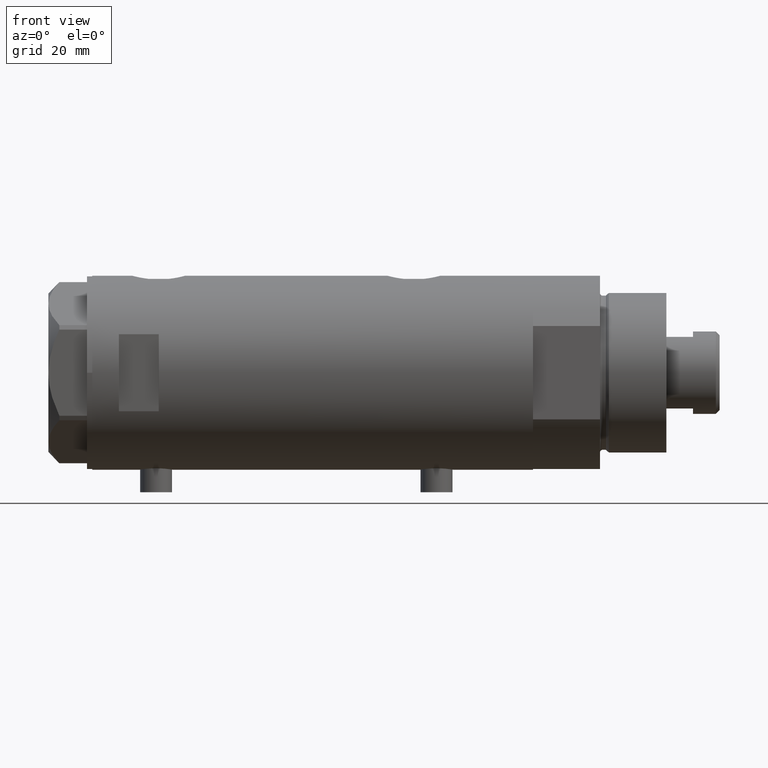
[diagram: clean part render]
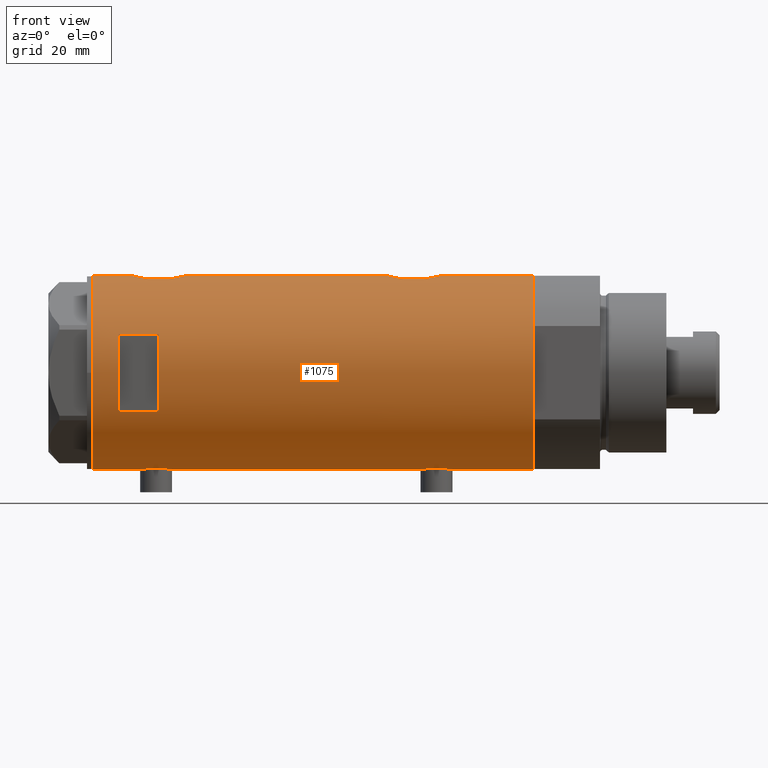
[diagram: same view with one face highlighted and labeled with its STEP entity id]
A machine part, front view. The second image highlights one B-rep face of the part: STEP entity #1075.
In plain terms, the highlighted cylindrical surface (partial cylindrical patch) has radius 36.5 mm, axis along (-1, -0, 0).
Its self-contained STEP definition (entity closure, byte-faithful):
#16 = EDGE_CURVE ( 'NONE', #4254, #3248, #575, .T. ) ;
#30 = DIRECTION ( 'NONE',  ( 1.000000000000000000, 0.000000000000000000, 0.000000000000000000 ) ) ;
#48 = VECTOR ( 'NONE', #3559, 1000.000000000000000 ) ;
#75 = CARTESIAN_POINT ( 'NONE',  ( -36.44621655743048905, -2.016281777336080161, 52.97017023300883665 ) ) ;
#79 = EDGE_CURVE ( 'NONE', #4462, #610, #4126, .T. ) ;
#139 = DIRECTION ( 'NONE',  ( 0.000000000000000000, 0.000000000000000000, 1.000000000000000000 ) ) ;
#155 = CARTESIAN_POINT ( 'NONE',  ( 36.34247810649306132, -3.420510937483960845, -28.69013481598272719 ) ) ;
#180 = ORIENTED_EDGE ( 'NONE', *, *, #3720, .F. ) ;
#183 = CARTESIAN_POINT ( 'NONE',  ( -36.50000000000000000, 2.196845629780489385E-16, 65.15000000000000568 ) ) ;
#197 = CIRCLE ( 'NONE', #342, 36.50000000000000000 ) ;
#217 = ORIENTED_EDGE ( 'NONE', *, *, #2765, .F. ) ;
#233 = CARTESIAN_POINT ( 'NONE',  ( 36.44931971524465553, -1.985988150549293341, -28.28633139468236379 ) ) ;
#256 = CARTESIAN_POINT ( 'NONE',  ( -36.16096637594732499, -4.968588355849264282, -50.41334492817760093 ) ) ;
#269 = CARTESIAN_POINT ( 'NONE',  ( 36.29527920868844859, -3.886508670267140975, -47.32716275830865982 ) ) ;
#278 = CARTESIAN_POINT ( 'NONE',  ( -36.46417279006303858, -1.628689148039105250, -40.56246061306183748 ) ) ;
#283 = VERTEX_POINT ( 'NONE', #1101 ) ;
#292 = VERTEX_POINT ( 'NONE', #3854 ) ;
#300 = CARTESIAN_POINT ( 'NONE',  ( -35.96095902952615830, -6.249754054240904466, -47.01658765420470587 ) ) ;
#311 = CARTESIAN_POINT ( 'NONE',  ( 36.50000000000000000, -0.5031001875915698252, 47.89999999999999858 ) ) ;
#318 = CARTESIAN_POINT ( 'NONE',  ( -36.36635911126386844, -3.125815113635437736, -52.01605600407904006 ) ) ;
#327 = CARTESIAN_POINT ( 'NONE',  ( -36.01675918113430441, -5.920026275461276910, 56.88560443482112561 ) ) ;
#342 = AXIS2_PLACEMENT_3D ( 'NONE', #1171, #3855, #3121 ) ;
#354 = CARTESIAN_POINT ( 'NONE',  ( -35.98821803976955636, -6.090959022952108448, 60.31573883149418691 ) ) ;
#363 = LINE ( 'NONE', #1392, #1343 ) ;
#365 = VERTEX_POINT ( 'NONE', #3977 ) ;
#368 = LINE ( 'NONE', #1224, #3803 ) ;
#375 = ORIENTED_EDGE ( 'NONE', *, *, #79, .F. ) ;
#384 = CARTESIAN_POINT ( 'NONE',  ( 35.52323553852026095, -8.411295122831241144, 63.39752392951088211 ) ) ;
#470 = CARTESIAN_POINT ( 'NONE',  ( 0.000000000000000000, 0.000000000000000000, -82.90000000000000568 ) ) ;
#480 = CARTESIAN_POINT ( 'NONE',  ( -36.39621039793029666, -2.776267550998798850, 64.51430753106778582 ) ) ;
#481 = AXIS2_PLACEMENT_3D ( 'NONE', #3296, #503, #1849 ) ;
#503 = DIRECTION ( 'NONE',  ( 0.000000000000000000, 0.000000000000000000, 1.000000000000000000 ) ) ;
#549 = EDGE_CURVE ( 'NONE', #2139, #283, #3629, .T. ) ;
#561 = VECTOR ( 'NONE', #1411, 1000.000000000000000 ) ;
#575 = B_SPLINE_CURVE_WITH_KNOTS ( 'NONE', 3,
 ( #1264, #927, #2194, #233, #1892, #155, #3631, #2624, #1910, #1535, #2898, #2605, #2555, #2262, #3652, #1940, #2287, #587 ),
 .UNSPECIFIED., .F., .F.,
 ( 4, 2, 2, 2, 2, 2, 2, 2, 4 ),
 ( 0.01190956515753144491, 0.01339852714138289880, 0.01488748912523435095, 0.01637645110908580309, 0.01712093210101153090, 0.01786541309293725524, 0.01935437507678869698, 0.02084333706064013872, 0.02382126102834301179 ),
 .UNSPECIFIED. ) ;
#578 = VECTOR ( 'NONE', #1406, 1000.000000000000000 ) ;
#587 = CARTESIAN_POINT ( 'NONE',  ( 35.29999999999999716, -9.282241108697837362, -34.37978495245235422 ) ) ;
#592 = CARTESIAN_POINT ( 'NONE',  ( -36.26692673949090562, -4.128477002029516285, -51.30999987432166876 ) ) ;
#610 = VERTEX_POINT ( 'NONE', #3010 ) ;
#611 = CARTESIAN_POINT ( 'NONE',  ( -36.44621655743048905, -2.016281777336084158, -52.52982976699116335 ) ) ;
#646 = CARTESIAN_POINT ( 'NONE',  ( 35.29999999999999716, -9.282241108697837362, 54.17978495245235138 ) ) ;
#660 = ORIENTED_EDGE ( 'NONE', *, *, #2741, .T. ) ;
#666 = CARTESIAN_POINT ( 'NONE',  ( 36.50000000000000000, 4.344604608721388599E-19, 67.90000000000000568 ) ) ;
#679 = CARTESIAN_POINT ( 'NONE',  ( 36.34247810649305421, -3.420510937483963065, 67.30986518401726926 ) ) ;
#685 = CARTESIAN_POINT ( 'NONE',  ( -36.50000000000000000, 4.469960493369248271E-15, 52.65000000000001279 ) ) ;
#729 = CARTESIAN_POINT ( 'NONE',  ( 35.93373217836898448, -6.415110096330619349, 65.58704266355093182 ) ) ;
#734 = CARTESIAN_POINT ( 'NONE',  ( -36.39558535855675103, -2.764807686267996001, 53.29105881454392346 ) ) ;
#756 = CARTESIAN_POINT ( 'NONE',  ( -36.49315367594273596, -0.8144497809045454506, 52.68960214445250045 ) ) ;
#782 = CARTESIAN_POINT ( 'NONE',  ( -36.47262891311152089, -1.427622242603853175, 64.98824629211699744 ) ) ;
#802 = CARTESIAN_POINT ( 'NONE',  ( 14.49137674618942739, -33.50000000000000000, -82.90000000000000568 ) ) ;
#810 = ORIENTED_EDGE ( 'NONE', *, *, #1540, .F. ) ;
#828 = CARTESIAN_POINT ( 'NONE',  ( -36.30107494031871340, -3.820993528321226851, 63.86306153536310148 ) ) ;
#887 = CARTESIAN_POINT ( 'NONE',  ( 36.50000000000000000, 0.000000000000000000, -82.90000000000000568 ) ) ;
#927 = CARTESIAN_POINT ( 'NONE',  ( 36.50000000000000000, -0.4962708696651104701, -28.10000000000000853 ) ) ;
#933 = CARTESIAN_POINT ( 'NONE',  ( -36.19599073318030946, -4.702920041824402375, -42.47846168323421523 ) ) ;
#955 = CARTESIAN_POINT ( 'NONE',  ( -36.36656776002987357, -3.137002187003164799, -41.17863590726366851 ) ) ;
#979 = CARTESIAN_POINT ( 'NONE',  ( 36.41918031349423757, -2.473644131148929226, 67.60188345463190274 ) ) ;
#984 = CARTESIAN_POINT ( 'NONE',  ( 35.69273631926343882, -7.635692914629145456, 51.43799804348507365 ) ) ;
#1019 = CARTESIAN_POINT ( 'NONE',  ( -36.50000000000000000, 4.469960493366092827E-15, -52.85000000000000853 ) ) ;
#1024 = CARTESIAN_POINT ( 'NONE',  ( -36.21356728133256553, -4.566014386638768130, -42.32737339235254126 ) ) ;
#1032 = CARTESIAN_POINT ( 'NONE',  ( -35.96095902952617251, -6.249754054240892920, 58.48341234579529413 ) ) ;
#1042 = CARTESIAN_POINT ( 'NONE',  ( 36.50000000000000000, -0.4962708696651115803, 67.90000000000000568 ) ) ;
#1048 = EDGE_CURVE ( 'NONE', #2680, #1781, #1899, .T. ) ;
#1065 = CARTESIAN_POINT ( 'NONE',  ( 36.00092304812866928, -6.029438422680412302, 65.89308155573651504 ) ) ;
#1075 = ADVANCED_FACE ( 'NONE', ( #1333, #2700 ), #2830, .T. ) ;
#1093 = CARTESIAN_POINT ( 'NONE',  ( 35.29999999999999716, -9.282241108697837362, -34.37978495245235422 ) ) ;
#1094 = CARTESIAN_POINT ( 'NONE',  ( -36.46614432713123932, -1.622933015999963979, 52.85033402613154863 ) ) ;
#1101 = CARTESIAN_POINT ( 'NONE',  ( 36.50000000000000000, 0.000000000000000000, 47.89999999999999858 ) ) ;
#1114 = CARTESIAN_POINT ( 'NONE',  ( -36.26692673949090562, -4.128477002029507403, 54.19000012567833835 ) ) ;
#1143 = CARTESIAN_POINT ( 'NONE',  ( -36.50000000000000000, -0.4136690418839307215, 65.15000000000001990 ) ) ;
#1161 = CARTESIAN_POINT ( 'NONE',  ( -36.50000000000000000, 4.469960493366092827E-15, -52.85000000000000853 ) ) ;
#1171 = CARTESIAN_POINT ( 'NONE',  ( 0.000000000000000000, 0.000000000000000000, 72.89999999999999147 ) ) ;
#1207 = CIRCLE ( 'NONE', #4457, 36.50000000000000000 ) ;
#1224 = CARTESIAN_POINT ( 'NONE',  ( 35.29999999999999716, -9.282241108697837362, -82.90000000000000568 ) ) ;
#1264 = CARTESIAN_POINT ( 'NONE',  ( 36.50000000000000000, 4.344611676915099379E-19, -28.10000000000000142 ) ) ;
#1265 = DIRECTION ( 'NONE',  ( -0.000000000000000000, -4.625929269271492422E-15, 1.000000000000000000 ) ) ;
#1291 = VERTEX_POINT ( 'NONE', #2626 ) ;
#1296 = ORIENTED_EDGE ( 'NONE', *, *, #3639, .F. ) ;
#1328 = CARTESIAN_POINT ( 'NONE',  ( -36.50000000000000000, 4.469960816887838430E-15, -82.90000000000000568 ) ) ;
#1330 = CARTESIAN_POINT ( 'NONE',  ( -36.35061318816139675, -3.303361544904985347, -51.90964041943019680 ) ) ;
#1333 = FACE_OUTER_BOUND ( 'NONE', #1469, .T. ) ;
#1343 = VECTOR ( 'NONE', #2001, 1000.000000000000000 ) ;
#1348 = CARTESIAN_POINT ( 'NONE',  ( 35.93363298843767950, -6.415574104180970849, -45.78651472888893181 ) ) ;
#1356 = CARTESIAN_POINT ( 'NONE',  ( -36.49315367594273596, -0.8144497809045464498, -52.81039785554752086 ) ) ;
#1369 = CARTESIAN_POINT ( 'NONE',  ( -35.99695583620880512, -6.039273428153901335, 57.27775555012245690 ) ) ;
#1375 = CARTESIAN_POINT ( 'NONE',  ( 36.50000000000000000, 0.000000000000000000, -48.10000000000000142 ) ) ;
#1392 = CARTESIAN_POINT ( 'NONE',  ( 36.50000000000000000, 0.000000000000000000, -82.90000000000000568 ) ) ;
#1393 = EDGE_CURVE ( 'NONE', #1291, #3125, #2695, .T. ) ;
#1399 = CARTESIAN_POINT ( 'NONE',  ( 36.21540437201188922, -4.554727782332259167, 66.80597629088626377 ) ) ;
#1406 = DIRECTION ( 'NONE',  ( 0.000000000000000000, 0.000000000000000000, 1.000000000000000000 ) ) ;
#1411 = DIRECTION ( 'NONE',  ( 0.000000000000000000, 0.000000000000000000, 1.000000000000000000 ) ) ;
#1429 = CARTESIAN_POINT ( 'NONE',  ( 35.29999999999999716, -9.282241108697837362, -41.82021504754764862 ) ) ;
#1435 = CARTESIAN_POINT ( 'NONE',  ( -36.35061318816141096, -3.303361544904979574, 53.59035958056982452 ) ) ;
#1450 = LINE ( 'NONE', #802, #48 ) ;
#1469 = EDGE_LOOP ( 'NONE', ( #217, #1583, #1562, #375, #2670, #4043, #1676, #4207, #3694, #1993, #660, #1296, #1904, #2232, #2987, #180 ) ) ;
#1474 = EDGE_CURVE ( 'NONE', #4254, #283, #363, .T. ) ;
#1475 = CARTESIAN_POINT ( 'NONE',  ( -36.36656776002988778, -3.137002187003155473, 64.32136409273633149 ) ) ;
#1488 = AXIS2_PLACEMENT_3D ( 'NONE', #470, #4229, #2155 ) ;
#1493 = ORIENTED_EDGE ( 'NONE', *, *, #1871, .F. ) ;
#1503 = CARTESIAN_POINT ( 'NONE',  ( -36.46417279006302437, -1.628689148039105250, 64.93753938693815542 ) ) ;
#1524 = CARTESIAN_POINT ( 'NONE',  ( -36.43335814606992784, -2.212659578761317469, 64.74876399169507124 ) ) ;
#1535 = CARTESIAN_POINT ( 'NONE',  ( 36.12724769814495573, -5.207618053557751203, -29.55935879511536157 ) ) ;
#1540 = EDGE_CURVE ( 'NONE', #3873, #2912, #197, .T. ) ;
#1562 = ORIENTED_EDGE ( 'NONE', *, *, #1673, .T. ) ;
#1583 = ORIENTED_EDGE ( 'NONE', *, *, #3814, .T. ) ;
#1590 = LINE ( 'NONE', #3234, #3365 ) ;
#1596 = CARTESIAN_POINT ( 'NONE',  ( 36.50000000000000000, 4.344611676915099379E-19, -28.10000000000000142 ) ) ;
#1619 = CARTESIAN_POINT ( 'NONE',  ( 35.79656810172927806, -7.133411935499478496, 50.88745121442323693 ) ) ;
#1629 = CARTESIAN_POINT ( 'NONE',  ( -36.50000000000000000, 7.463603853851042361E-16, -40.34999999999999432 ) ) ;
#1654 = CARTESIAN_POINT ( 'NONE',  ( -35.96816095843705341, -6.208699946936208747, -47.42496377127785223 ) ) ;
#1670 = CARTESIAN_POINT ( 'NONE',  ( 36.18850502651836365, -4.779575967213807175, -46.89779152890154279 ) ) ;
#1673 = EDGE_CURVE ( 'NONE', #3689, #610, #2620, .T. ) ;
#1674 = CARTESIAN_POINT ( 'NONE',  ( -35.98855750525640929, -6.088954600884540547, -48.02430226150165993 ) ) ;
#1676 = ORIENTED_EDGE ( 'NONE', *, *, #1474, .T. ) ;
#1683 = CARTESIAN_POINT ( 'NONE',  ( 35.83108131285855791, -6.958268797611352419, 50.71369216627174126 ) ) ;
#1733 = CARTESIAN_POINT ( 'NONE',  ( 35.29999999999999716, -9.282241108697837362, -82.90000000000000568 ) ) ;
#1739 = CARTESIAN_POINT ( 'NONE',  ( 14.49137674618942739, -33.50000000000000000, 72.89999999999999147 ) ) ;
#1747 = LINE ( 'NONE', #2817, #3164 ) ;
#1759 = CARTESIAN_POINT ( 'NONE',  ( 35.29999999999999716, -9.282241108697837362, 61.62021504754764578 ) ) ;
#1766 = EDGE_LOOP ( 'NONE', ( #3645, #1493, #810, #2745 ) ) ;
#1781 = VERTEX_POINT ( 'NONE', #3661 ) ;
#1795 = CARTESIAN_POINT ( 'NONE',  ( -36.50000000000000000, 4.469960493369248271E-15, 52.65000000000001279 ) ) ;
#1797 = VERTEX_POINT ( 'NONE', #183 ) ;
#1813 = CARTESIAN_POINT ( 'NONE',  ( -36.01639592019627401, -5.922235714778413040, 60.90796802426914525 ) ) ;
#1849 = DIRECTION ( 'NONE',  ( 1.000000000000000000, 0.000000000000000000, 0.000000000000000000 ) ) ;
#1858 = CARTESIAN_POINT ( 'NONE',  ( -36.14410773716529945, -5.085921866747741049, 62.53835878420471772 ) ) ;
#1871 = EDGE_CURVE ( 'NONE', #2912, #2497, #1590, .T. ) ;
#1892 = CARTESIAN_POINT ( 'NONE',  ( 36.41918031349423757, -2.473644131148924341, -28.39811654536808661 ) ) ;
#1899 = B_SPLINE_CURVE_WITH_KNOTS ( 'NONE', 3,
 ( #2373, #1042, #2028, #3780, #979, #679, #2392, #1399, #2761, #3795, #4159, #1065, #729, #3040, #2091, #384, #4433, #1759 ),
 .UNSPECIFIED., .F., .F.,
 ( 4, 2, 2, 2, 2, 2, 2, 2, 4 ),
 ( 0.01190956515753144838, 0.01339852714138287625, 0.01488748912523430584, 0.01637645110908573370, 0.01712093210101144763, 0.01786541309293716503, 0.01935437507678861718, 0.02084333706064007280, 0.02382126102834301526 ),
 .UNSPECIFIED. ) ;
#1902 = CARTESIAN_POINT ( 'NONE',  ( -36.02782481185207075, -5.852531070448503847, 61.10277008952189703 ) ) ;
#1904 = ORIENTED_EDGE ( 'NONE', *, *, #3668, .F. ) ;
#1910 = CARTESIAN_POINT ( 'NONE',  ( 36.18674680775576746, -4.776679548204623593, -29.31107683068752223 ) ) ;
#1940 = CARTESIAN_POINT ( 'NONE',  ( 35.52323553852026095, -8.411295122831244697, -32.60247607048910368 ) ) ;
#1967 = CARTESIAN_POINT ( 'NONE',  ( -36.49297138689432529, -0.8222528563518524125, -40.39066887946565743 ) ) ;
#1993 = ORIENTED_EDGE ( 'NONE', *, *, #1048, .F. ) ;
#1999 = CARTESIAN_POINT ( 'NONE',  ( 35.69273631926343882, -7.635692914629145456, -44.56200195651491214 ) ) ;
#2001 = DIRECTION ( 'NONE',  ( 0.000000000000000000, 0.000000000000000000, 1.000000000000000000 ) ) ;
#2006 = CARTESIAN_POINT ( 'NONE',  ( -36.19666146462958523, -4.704890678739107379, -50.73429859510781625 ) ) ;
#2011 = EDGE_CURVE ( 'NONE', #2139, #1781, #368, .T. ) ;
#2015 = CARTESIAN_POINT ( 'NONE',  ( 36.41856252531823657, -2.482507212621167358, 48.20043487153495931 ) ) ;
#2019 = CARTESIAN_POINT ( 'NONE',  ( 36.48960339336945680, -1.002724032967599488, -48.06224865973496208 ) ) ;
#2024 = CARTESIAN_POINT ( 'NONE',  ( -36.40915499150420231, -2.580495338846554354, -52.29605013355477183 ) ) ;
#2028 = CARTESIAN_POINT ( 'NONE',  ( 36.48988302519020266, -0.9927202255321159186, 67.86326989411300303 ) ) ;
#2037 = CARTESIAN_POINT ( 'NONE',  ( 36.48960339336945680, -1.002724032967599488, 47.93775134026500950 ) ) ;
#2053 = CARTESIAN_POINT ( 'NONE',  ( -35.96087392089862789, -6.250243747806507599, 59.30917490776180045 ) ) ;
#2062 = CARTESIAN_POINT ( 'NONE',  ( 36.44881677724179525, -1.995085670027224811, -47.91180345369464533 ) ) ;
#2068 = CARTESIAN_POINT ( 'NONE',  ( 0.000000000000000000, 0.000000000000000000, -82.90000000000000568 ) ) ;
#2091 = CARTESIAN_POINT ( 'NONE',  ( 35.72583162417571145, -7.484316398521971614, 64.55042643719502848 ) ) ;
#2096 = CARTESIAN_POINT ( 'NONE',  ( -36.36635911126388976, -3.125815113635431075, 53.48394399592097415 ) ) ;
#2125 = AXIS2_PLACEMENT_3D ( 'NONE', #3562, #1265, #4234 ) ;
#2139 = VERTEX_POINT ( 'NONE', #3908 ) ;
#2155 = DIRECTION ( 'NONE',  ( 1.000000000000000000, 0.000000000000000000, 0.000000000000000000 ) ) ;
#2194 = CARTESIAN_POINT ( 'NONE',  ( 36.48988302519020976, -0.9927202255321161406, -28.13673010588698631 ) ) ;
#2232 = ORIENTED_EDGE ( 'NONE', *, *, #2795, .F. ) ;
#2255 = CARTESIAN_POINT ( 'NONE',  ( -14.49137674618942739, -33.50000000000000000, 57.89999999999999147 ) ) ;
#2262 = CARTESIAN_POINT ( 'NONE',  ( 35.79638309643554095, -7.141827709208429020, -31.08298073030451292 ) ) ;
#2287 = CARTESIAN_POINT ( 'NONE',  ( 35.39807338191550201, -8.909271871950332766, -33.44919617267214562 ) ) ;
#2310 = CARTESIAN_POINT ( 'NONE',  ( -36.09582946723049446, -5.421573071064202054, -49.73608278370488023 ) ) ;
#2319 = EDGE_CURVE ( 'NONE', #4462, #3248, #3853, .T. ) ;
#2320 = CARTESIAN_POINT ( 'NONE',  ( 36.12792682573228120, -5.214735277442337669, 49.35306882011299479 ) ) ;
#2330 = CARTESIAN_POINT ( 'NONE',  ( -35.99695583620881223, -6.039273428153914658, -48.22224444987753600 ) ) ;
#2340 = CARTESIAN_POINT ( 'NONE',  ( 35.72742963626382107, -7.471989379615407323, 51.24937739587225138 ) ) ;
#2348 = CARTESIAN_POINT ( 'NONE',  ( 36.41856252531823657, -2.482507212621167358, -47.79956512846506200 ) ) ;
#2354 = CARTESIAN_POINT ( 'NONE',  ( -35.96794010939611042, -6.209972807992086175, -45.78444451008647320 ) ) ;
#2361 = VERTEX_POINT ( 'NONE', #4152 ) ;
#2371 = CARTESIAN_POINT ( 'NONE',  ( -36.16125812922425098, -4.962923794285021728, -42.79553914089240152 ) ) ;
#2373 = CARTESIAN_POINT ( 'NONE',  ( 36.50000000000000000, 4.344604608721388599E-19, 67.90000000000000568 ) ) ;
#2380 = CARTESIAN_POINT ( 'NONE',  ( 36.50000000000000000, 0.000000000000000000, -82.90000000000000568 ) ) ;
#2384 = CARTESIAN_POINT ( 'NONE',  ( 36.50000000000000000, -0.5031001875915698252, -48.09999999999999432 ) ) ;
#2392 = CARTESIAN_POINT ( 'NONE',  ( 36.29582892817135331, -3.881628320031160762, 67.12934434534989236 ) ) ;
#2450 = CARTESIAN_POINT ( 'NONE',  ( -36.16096637594733210, -4.968588355849251847, 55.08665507182242749 ) ) ;
#2497 = VERTEX_POINT ( 'NONE', #2255 ) ;
#2524 = CARTESIAN_POINT ( 'NONE',  ( -14.49137674618942739, -33.50000000000000000, 72.89999999999999147 ) ) ;
#2541 = VERTEX_POINT ( 'NONE', #3264 ) ;
#2555 = CARTESIAN_POINT ( 'NONE',  ( 35.93373217836898448, -6.415110096330614020, -30.41295733644907173 ) ) ;
#2557 = VECTOR ( 'NONE', #2579, 1000.000000000000000 ) ;
#2579 = DIRECTION ( 'NONE',  ( 0.000000000000000000, 0.000000000000000000, 1.000000000000000000 ) ) ;
#2605 = CARTESIAN_POINT ( 'NONE',  ( 36.00092304812866928, -6.029438422680413190, -30.10691844426349562 ) ) ;
#2620 = LINE ( 'NONE', #3245, #2557 ) ;
#2624 = CARTESIAN_POINT ( 'NONE',  ( 36.21540437201188922, -4.554727782332255615, -29.19402370911373978 ) ) ;
#2626 = CARTESIAN_POINT ( 'NONE',  ( -36.50000000000000000, 7.463603853851042361E-16, -40.34999999999999432 ) ) ;
#2657 = CARTESIAN_POINT ( 'NONE',  ( -36.01675918113430441, -5.920026275461289345, -48.61439556517890281 ) ) ;
#2669 = CARTESIAN_POINT ( 'NONE',  ( 35.93363298843767950, -6.415574104180970849, 50.21348527111108240 ) ) ;
#2670 = ORIENTED_EDGE ( 'NONE', *, *, #2319, .T. ) ;
#2674 = CARTESIAN_POINT ( 'NONE',  ( 35.39794035667549821, -8.909777761736840773, -42.74954159089456596 ) ) ;
#2680 = VERTEX_POINT ( 'NONE', #666 ) ;
#2695 = LINE ( 'NONE', #1328, #4450 ) ;
#2698 = CARTESIAN_POINT ( 'NONE',  ( -36.47262891311152799, -1.427622242603851843, -40.51175370788298835 ) ) ;
#2700 = FACE_BOUND ( 'NONE', #1766, .T. ) ;
#2716 = CARTESIAN_POINT ( 'NONE',  ( 36.34184199234172041, -3.427106516421254412, -47.50740913680033373 ) ) ;
#2722 = CARTESIAN_POINT ( 'NONE',  ( -36.02823773219771653, -5.849994928883562650, -48.80955101485645287 ) ) ;
#2733 = CARTESIAN_POINT ( 'NONE',  ( -35.98855750525641639, -6.088954600884528112, 57.47569773849836139 ) ) ;
#2741 = EDGE_CURVE ( 'NONE', #2680, #292, #4216, .T. ) ;
#2745 = ORIENTED_EDGE ( 'NONE', *, *, #4473, .F. ) ;
#2761 = CARTESIAN_POINT ( 'NONE',  ( 36.18674680775578167, -4.776679548204628922, 66.68892316931247422 ) ) ;
#2765 = EDGE_CURVE ( 'NONE', #2361, #3459, #1747, .T. ) ;
#2795 = EDGE_CURVE ( 'NONE', #3125, #1797, #3087, .T. ) ;
#2797 = CARTESIAN_POINT ( 'NONE',  ( -36.30176144752230982, -3.814344296723633843, 53.93198298049745176 ) ) ;
#2817 = CARTESIAN_POINT ( 'NONE',  ( -36.50000000000000000, 4.469960816887838430E-15, -82.90000000000000568 ) ) ;
#2830 = CYLINDRICAL_SURFACE ( 'NONE', #1488, 36.50000000000000000 ) ;
#2876 = DIRECTION ( 'NONE',  ( 0.000000000000000000, 0.000000000000000000, 1.000000000000000000 ) ) ;
#2888 = CARTESIAN_POINT ( 'NONE',  ( -36.49297138689432529, -0.8222528563518540778, 65.10933112053433547 ) ) ;
#2898 = CARTESIAN_POINT ( 'NONE',  ( 36.09633718678917091, -5.417295330713080226, -29.69085132654786463 ) ) ;
#2910 = CARTESIAN_POINT ( 'NONE',  ( -36.06543684817879836, -5.617774235967360141, 61.66954447971700404 ) ) ;
#2912 = VERTEX_POINT ( 'NONE', #2524 ) ;
#2958 = DIRECTION ( 'NONE',  ( -0.000000000000000000, -0.000000000000000000, -1.000000000000000000 ) ) ;
#2974 = CARTESIAN_POINT ( 'NONE',  ( -35.99659093586380720, -6.041447834568803188, -44.98577587985177217 ) ) ;
#2987 = ORIENTED_EDGE ( 'NONE', *, *, #1393, .F. ) ;
#2995 = CARTESIAN_POINT ( 'NONE',  ( -36.44454782745417276, -2.020757099930490241, -40.68214135579004420 ) ) ;
#3010 = CARTESIAN_POINT ( 'NONE',  ( 36.50000000000000000, 0.000000000000000000, -48.10000000000000142 ) ) ;
#3018 = CARTESIAN_POINT ( 'NONE',  ( -36.26616882068469749, -4.135065845178866439, -41.89584944059903648 ) ) ;
#3037 = CARTESIAN_POINT ( 'NONE',  ( -36.02782481185207075, -5.852531070448518058, -44.39722991047811718 ) ) ;
#3040 = CARTESIAN_POINT ( 'NONE',  ( 35.79638309643554805, -7.141827709208436126, 64.91701926969550129 ) ) ;
#3052 = CARTESIAN_POINT ( 'NONE',  ( 36.12792682573228120, -5.214735277442337669, -46.64693117988700521 ) ) ;
#3087 = B_SPLINE_CURVE_WITH_KNOTS ( 'NONE', 3,
 ( #1795, #4172, #756, #1094, #75, #3830, #734, #2096, #1435, #2797, #1114, #4194, #2450, #3767, #3848, #3414, #327, #1369, #2733, #4128, #1032, #2053, #3436, #354, #3097, #1813, #1902, #2910, #3565, #1858, #4304, #3239, #3187, #3619, #828, #1475, #480, #1524, #3279, #1503, #782, #2888, #1143, #3210 ),
 .UNSPECIFIED., .F., .F.,
 ( 4, 2, 2, 2, 2, 2, 2, 2, 2, 2, 2, 2, 2, 2, 2, 2, 2, 2, 2, 2, 2, 4 ),
 ( 0.01957644481942640707, 0.02079966591703042919, 0.02202288701463445131, 0.02263449756343646410, 0.02324610811223847689, 0.02446932920984250248, 0.02569255030744652807, 0.02691577140505055366, 0.02752738195385255604, 0.02813899250265455843, 0.02936221360025858054, 0.03058543469786260266, 0.03119704524666461545, 0.03180865579546662825, 0.03303187689307066771, 0.03364348744187267704, 0.03425509799067469330, 0.03547831908827872582, 0.03670154018588275141, 0.03731315073468476073, 0.03792476128348677700, 0.03914798238109080952 ),
 .UNSPECIFIED. ) ;
#3097 = CARTESIAN_POINT ( 'NONE',  ( -35.99659093586380010, -6.041447834568789865, 60.51422412014822783 ) ) ;
#3121 = DIRECTION ( 'NONE',  ( 1.000000000000000000, 0.000000000000000000, 0.000000000000000000 ) ) ;
#3125 = VERTEX_POINT ( 'NONE', #685 ) ;
#3164 = VECTOR ( 'NONE', #3476, 1000.000000000000000 ) ;
#3187 = CARTESIAN_POINT ( 'NONE',  ( -36.21356728133256553, -4.566014386638760136, 63.17262660764745874 ) ) ;
#3210 = CARTESIAN_POINT ( 'NONE',  ( -36.50000000000000000, 2.196845629780489385E-16, 65.15000000000000568 ) ) ;
#3226 = VECTOR ( 'NONE', #139, 1000.000000000000000 ) ;
#3233 = CARTESIAN_POINT ( 'NONE',  ( -36.50000000000000000, 4.469960816887838430E-15, -82.90000000000000568 ) ) ;
#3234 = CARTESIAN_POINT ( 'NONE',  ( -14.49137674618942739, -33.50000000000000000, -82.90000000000000568 ) ) ;
#3239 = CARTESIAN_POINT ( 'NONE',  ( -36.19599073318029525, -4.702920041824397934, 63.02153831676577056 ) ) ;
#3245 = CARTESIAN_POINT ( 'NONE',  ( 36.50000000000000000, 0.000000000000000000, -82.90000000000000568 ) ) ;
#3248 = VERTEX_POINT ( 'NONE', #1093 ) ;
#3264 = CARTESIAN_POINT ( 'NONE',  ( 14.49137674618942739, -33.50000000000000000, 57.89999999999999147 ) ) ;
#3279 = CARTESIAN_POINT ( 'NONE',  ( -36.44454782745417276, -2.020757099930493350, 64.81785864420996290 ) ) ;
#3296 = CARTESIAN_POINT ( 'NONE',  ( 0.000000000000000000, 0.000000000000000000, 82.90000000000000568 ) ) ;
#3309 = EDGE_CURVE ( 'NONE', #2497, #2541, #4466, .T. ) ;
#3341 = CARTESIAN_POINT ( 'NONE',  ( -36.39558535855673682, -2.764807686268002218, -52.20894118545612628 ) ) ;
#3350 = CARTESIAN_POINT ( 'NONE',  ( 36.50000000000000000, 0.000000000000000000, 47.89999999999999858 ) ) ;
#3355 = CARTESIAN_POINT ( 'NONE',  ( 36.00068527486602221, -6.030855700422095289, -46.09201327127355086 ) ) ;
#3361 = CARTESIAN_POINT ( 'NONE',  ( -36.39621039793030377, -2.776267550998805511, -40.98569246893223550 ) ) ;
#3365 = VECTOR ( 'NONE', #2958, 1000.000000000000000 ) ;
#3379 = CARTESIAN_POINT ( 'NONE',  ( 35.72742963626382107, -7.471989379615407323, -44.75062260412776283 ) ) ;
#3383 = CARTESIAN_POINT ( 'NONE',  ( -36.06605150775667568, -5.613853192123352542, -49.37765688272543940 ) ) ;
#3394 = CARTESIAN_POINT ( 'NONE',  ( 36.44881677724179525, -1.995085670027224811, 48.08819654630536178 ) ) ;
#3398 = CARTESIAN_POINT ( 'NONE',  ( 35.79656810172927806, -7.133411935499478496, -45.11254878557677728 ) ) ;
#3404 = CARTESIAN_POINT ( 'NONE',  ( -36.30176144752230272, -3.814344296723641836, -51.56801701950257666 ) ) ;
#3414 = CARTESIAN_POINT ( 'NONE',  ( -36.02823773219771653, -5.849994928883547551, 56.69044898514355424 ) ) ;
#3422 = CARTESIAN_POINT ( 'NONE',  ( -36.43335814606994205, -2.212659578761328127, -40.75123600830492165 ) ) ;
#3436 = CARTESIAN_POINT ( 'NONE',  ( -35.96794010939611042, -6.209972807992070187, 59.71555548991352680 ) ) ;
#3459 = VERTEX_POINT ( 'NONE', #1019 ) ;
#3466 = DIRECTION ( 'NONE',  ( 0.000000000000000000, 0.000000000000000000, 1.000000000000000000 ) ) ;
#3476 = DIRECTION ( 'NONE',  ( 0.000000000000000000, 0.000000000000000000, 1.000000000000000000 ) ) ;
#3502 = CIRCLE ( 'NONE', #481, 36.50000000000000000 ) ;
#3504 = B_SPLINE_CURVE_WITH_KNOTS ( 'NONE', 3,
 ( #1161, #4451, #1356, #4413, #611, #2024, #3341, #318, #1330, #3404, #592, #2006, #256, #2310, #3383, #2722, #2657, #2330, #1674, #1654, #300, #4031, #2354, #4056, #2974, #4120, #3037, #4369, #4391, #3776, #2371, #933, #1024, #3018, #4430, #955, #3361, #3422, #2995, #278, #2698, #1967, #3729, #1629 ),
 .UNSPECIFIED., .F., .F.,
 ( 4, 2, 2, 2, 2, 2, 2, 2, 2, 2, 2, 2, 2, 2, 2, 2, 2, 2, 2, 2, 2, 4 ),
 ( 0.01957644481942644524, 0.02079966591703048817, 0.02202288701463452764, 0.02263449756343654390, 0.02324610811223856363, 0.02446932920984259616, 0.02569255030744663215, 0.02691577140505066468, 0.02752738195385267400, 0.02813899250265468333, 0.02936221360025868116, 0.03058543469786267552, 0.03119704524666467443, 0.03180865579546667682, 0.03303187689307068853, 0.03364348744187271173, 0.03425509799067472799, 0.03547831908827876746, 0.03670154018588280692, 0.03731315073468483012, 0.03792476128348684639, 0.03914798238109087891 ),
 .UNSPECIFIED. ) ;
#3559 = DIRECTION ( 'NONE',  ( 0.000000000000000000, 0.000000000000000000, 1.000000000000000000 ) ) ;
#3562 = CARTESIAN_POINT ( 'NONE',  ( 0.000000000000000000, 0.000000000000000000, 57.90000000000014779 ) ) ;
#3565 = CARTESIAN_POINT ( 'NONE',  ( -36.09514898390869320, -5.426114745500152381, 62.02838652946137188 ) ) ;
#3619 = CARTESIAN_POINT ( 'NONE',  ( -36.26616882068471881, -4.135065845178862887, 63.60415055940097062 ) ) ;
#3629 = B_SPLINE_CURVE_WITH_KNOTS ( 'NONE', 3,
 ( #646, #4423, #4083, #984, #2340, #1619, #1683, #2669, #3745, #2320, #3718, #3786, #4378, #2015, #3394, #2037, #311, #3350 ),
 .UNSPECIFIED., .F., .F.,
 ( 4, 2, 2, 2, 2, 2, 2, 2, 4 ),
 ( -0.01189883390545606184, -0.008924125429092075873, -0.008180448310001064635, -0.007436771190910053397, -0.005949416952728041330, -0.004462062714546030130, -0.002974708476364018930, -0.001487354238182008598, 0.000000000000000000 ),
 .UNSPECIFIED. ) ;
#3631 = CARTESIAN_POINT ( 'NONE',  ( 36.29582892817134621, -3.881628320031158097, -28.87065565465010408 ) ) ;
#3639 = EDGE_CURVE ( 'NONE', #365, #292, #3502, .T. ) ;
#3645 = ORIENTED_EDGE ( 'NONE', *, *, #3309, .F. ) ;
#3652 = CARTESIAN_POINT ( 'NONE',  ( 35.72583162417571145, -7.484316398521975167, -31.44957356280499283 ) ) ;
#3661 = CARTESIAN_POINT ( 'NONE',  ( 35.29999999999999716, -9.282241108697837362, 61.62021504754764578 ) ) ;
#3668 = EDGE_CURVE ( 'NONE', #1797, #365, #3987, .T. ) ;
#3689 = VERTEX_POINT ( 'NONE', #887 ) ;
#3694 = ORIENTED_EDGE ( 'NONE', *, *, #2011, .T. ) ;
#3703 = CARTESIAN_POINT ( 'NONE',  ( 35.29999999999999716, -9.282241108697837362, -41.82021504754764862 ) ) ;
#3718 = CARTESIAN_POINT ( 'NONE',  ( 36.18850502651836365, -4.779575967213807175, 49.10220847109845721 ) ) ;
#3720 = EDGE_CURVE ( 'NONE', #3459, #1291, #3504, .T. ) ;
#3729 = CARTESIAN_POINT ( 'NONE',  ( -36.50000000000000711, -0.4136690418839297223, -40.35000000000000853 ) ) ;
#3745 = CARTESIAN_POINT ( 'NONE',  ( 36.00068527486602221, -6.030855700422095289, 49.90798672872647046 ) ) ;
#3767 = CARTESIAN_POINT ( 'NONE',  ( -36.09582946723049446, -5.421573071064185179, 55.76391721629512688 ) ) ;
#3771 = CARTESIAN_POINT ( 'NONE',  ( 35.83108131285855791, -6.958268797611352419, -45.28630783372827295 ) ) ;
#3776 = CARTESIAN_POINT ( 'NONE',  ( -36.14410773716529235, -5.085921866747748155, -42.96164121579527517 ) ) ;
#3780 = CARTESIAN_POINT ( 'NONE',  ( 36.44931971524464842, -1.985988150549293341, 67.71366860531763621 ) ) ;
#3786 = CARTESIAN_POINT ( 'NONE',  ( 36.29527920868844859, -3.886508670267140975, 48.67283724169136860 ) ) ;
#3795 = CARTESIAN_POINT ( 'NONE',  ( 36.12724769814495573, -5.207618053557753868, 66.44064120488465619 ) ) ;
#3803 = VECTOR ( 'NONE', #2876, 1000.000000000000000 ) ;
#3814 = EDGE_CURVE ( 'NONE', #2361, #3689, #1207, .T. ) ;
#3830 = CARTESIAN_POINT ( 'NONE',  ( -36.40915499150420231, -2.580495338846549025, 53.20394986644524238 ) ) ;
#3848 = CARTESIAN_POINT ( 'NONE',  ( -36.06605150775668278, -5.613853192123342772, 56.12234311727456770 ) ) ;
#3853 = LINE ( 'NONE', #1733, #561 ) ;
#3854 = CARTESIAN_POINT ( 'NONE',  ( 36.50000000000000000, 0.000000000000000000, 82.90000000000000568 ) ) ;
#3855 = DIRECTION ( 'NONE',  ( -0.000000000000000000, 0.000000000000000000, -1.000000000000000000 ) ) ;
#3873 = VERTEX_POINT ( 'NONE', #1739 ) ;
#3886 = DIRECTION ( 'NONE',  ( 0.000000000000000000, 0.000000000000000000, 1.000000000000000000 ) ) ;
#3908 = CARTESIAN_POINT ( 'NONE',  ( 35.29999999999999716, -9.282241108697837362, 54.17978495245235138 ) ) ;
#3977 = CARTESIAN_POINT ( 'NONE',  ( -36.50000000000000000, 4.469960816887838430E-15, 82.90000000000000568 ) ) ;
#3987 = LINE ( 'NONE', #3233, #3226 ) ;
#4031 = CARTESIAN_POINT ( 'NONE',  ( -35.96087392089862078, -6.250243747806522698, -46.19082509223819244 ) ) ;
#4043 = ORIENTED_EDGE ( 'NONE', *, *, #16, .F. ) ;
#4056 = CARTESIAN_POINT ( 'NONE',  ( -35.98821803976953504, -6.090959022952123547, -45.18426116850582730 ) ) ;
#4083 = CARTESIAN_POINT ( 'NONE',  ( 35.52320828895290106, -8.411622242316138198, 52.40227134055386671 ) ) ;
#4120 = CARTESIAN_POINT ( 'NONE',  ( -36.01639592019626690, -5.922235714778424587, -44.59203197573086186 ) ) ;
#4126 = B_SPLINE_CURVE_WITH_KNOTS ( 'NONE', 3,
 ( #3703, #2674, #4476, #1999, #3379, #3398, #3771, #1348, #3355, #3052, #1670, #269, #2716, #2348, #2062, #2019, #2384, #1375 ),
 .UNSPECIFIED., .F., .F.,
 ( 4, 2, 2, 2, 2, 2, 2, 2, 4 ),
 ( -0.01189883390545606184, -0.008924125429092075873, -0.008180448310001064635, -0.007436771190910053397, -0.005949416952728041330, -0.004462062714546030130, -0.002974708476364018930, -0.001487354238182008598, 0.000000000000000000 ),
 .UNSPECIFIED. ) ;
#4128 = CARTESIAN_POINT ( 'NONE',  ( -35.96816095843706762, -6.208699946936197200, 58.07503622872215487 ) ) ;
#4152 = CARTESIAN_POINT ( 'NONE',  ( -36.50000000000000000, 4.469960816887838430E-15, -82.90000000000000568 ) ) ;
#4159 = CARTESIAN_POINT ( 'NONE',  ( 36.09633718678917802, -5.417295330713079338, 66.30914867345214248 ) ) ;
#4172 = CARTESIAN_POINT ( 'NONE',  ( -36.50000000000000000, -0.4082012689449559528, 52.65000000000000568 ) ) ;
#4194 = CARTESIAN_POINT ( 'NONE',  ( -36.19666146462961365, -4.704890678739097609, 54.76570140489218375 ) ) ;
#4207 = ORIENTED_EDGE ( 'NONE', *, *, #549, .F. ) ;
#4216 = LINE ( 'NONE', #2380, #578 ) ;
#4229 = DIRECTION ( 'NONE',  ( 0.000000000000000000, 0.000000000000000000, 1.000000000000000000 ) ) ;
#4234 = DIRECTION ( 'NONE',  ( 1.776356839400250465E-15, 1.000000000000000000, 4.562560375171875891E-15 ) ) ;
#4254 = VERTEX_POINT ( 'NONE', #1596 ) ;
#4304 = CARTESIAN_POINT ( 'NONE',  ( -36.16125812922425098, -4.962923794285019063, 62.70446085910759138 ) ) ;
#4369 = CARTESIAN_POINT ( 'NONE',  ( -36.06543684817881257, -5.617774235967372576, -43.83045552028299596 ) ) ;
#4378 = CARTESIAN_POINT ( 'NONE',  ( 36.34184199234172041, -3.427106516421254412, 48.49259086319967338 ) ) ;
#4391 = CARTESIAN_POINT ( 'NONE',  ( -36.09514898390870741, -5.426114745500162151, -43.47161347053861391 ) ) ;
#4413 = CARTESIAN_POINT ( 'NONE',  ( -36.46614432713122511, -1.622933015999966200, -52.64966597386846558 ) ) ;
#4423 = CARTESIAN_POINT ( 'NONE',  ( 35.39794035667549821, -8.909777761736840773, 53.25045840910545536 ) ) ;
#4430 = CARTESIAN_POINT ( 'NONE',  ( -36.30107494031870630, -3.820993528321237509, -41.63693846463691983 ) ) ;
#4433 = CARTESIAN_POINT ( 'NONE',  ( 35.39807338191550201, -8.909271871950330990, 62.55080382732786148 ) ) ;
#4450 = VECTOR ( 'NONE', #3466, 1000.000000000000000 ) ;
#4451 = CARTESIAN_POINT ( 'NONE',  ( -36.49999999999999289, -0.4082012689449579512, -52.85000000000000853 ) ) ;
#4457 = AXIS2_PLACEMENT_3D ( 'NONE', #2068, #3886, #30 ) ;
#4462 = VERTEX_POINT ( 'NONE', #1429 ) ;
#4466 = CIRCLE ( 'NONE', #2125, 36.50000000000000000 ) ;
#4473 = EDGE_CURVE ( 'NONE', #2541, #3873, #1450, .T. ) ;
#4476 = CARTESIAN_POINT ( 'NONE',  ( 35.52320828895290106, -8.411622242316138198, -43.59772865944614040 ) ) ;